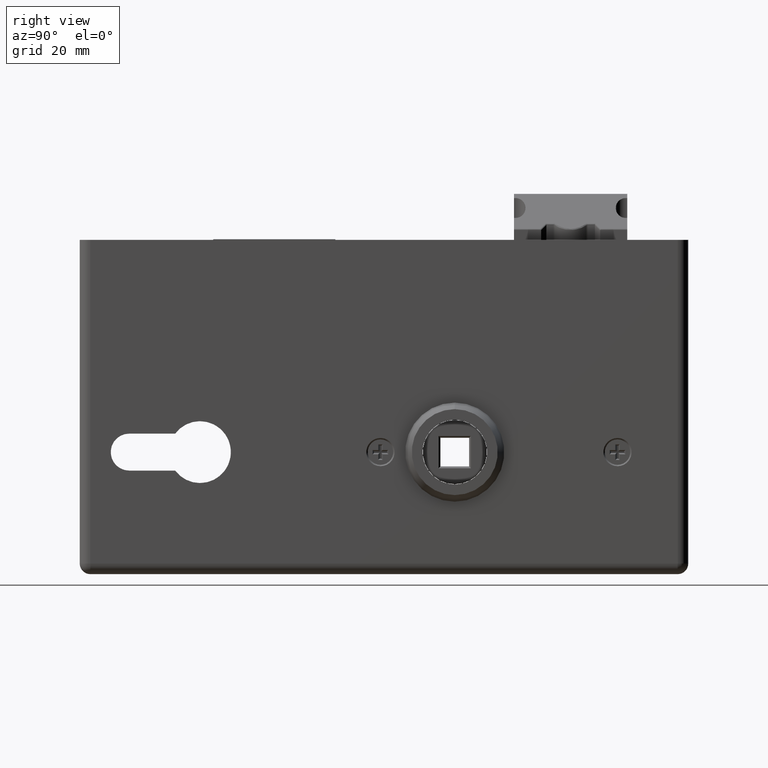
[diagram: clean part render]
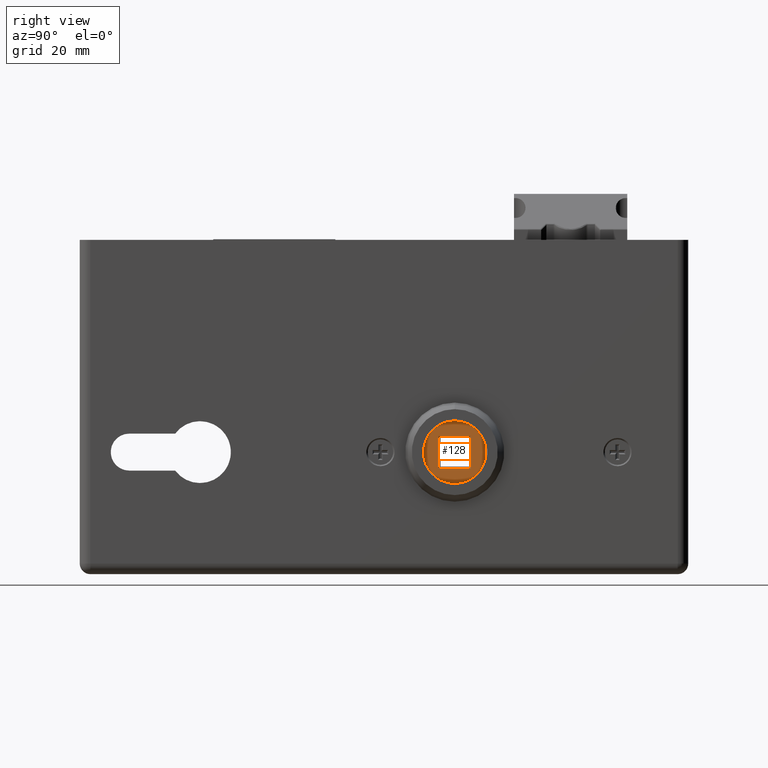
[diagram: same view with one face highlighted and labeled with its STEP entity id]
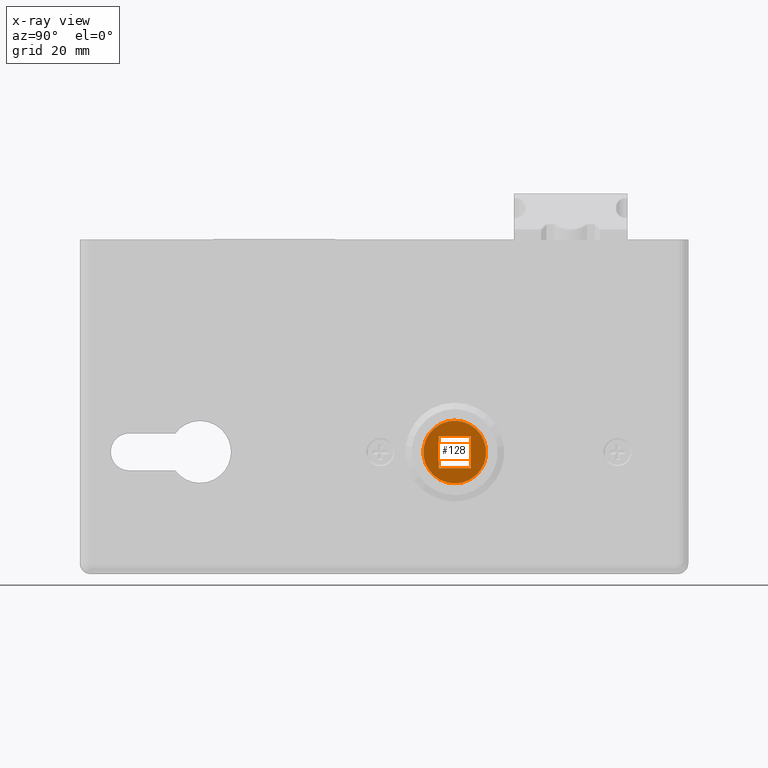
[diagram: x-ray of the same camera — body ghosted, the highlighted face saturated]
A machine part, right view. The second image highlights one B-rep face of the part: STEP entity #128.
The next image is the same camera in x-ray: the body ghosted, the highlighted face saturated — about 0% of this face is hidden behind the body in this view.
In plain terms, the highlighted planar face has unit normal (1, 0, 0).
Its self-contained STEP definition (entity closure, byte-faithful):
#81 = EDGE_CURVE ( 'NONE', #21067, #16696, #7789, .T. ) ;
#128 = ADVANCED_FACE ( 'NONE', ( #13220, #18938 ), #12899, .T. ) ;
#437 = CARTESIAN_POINT ( 'NONE',  ( 7.000000000000000000, 15.45000000000000462, -52.44999999999999574 ) ) ;
#1937 = CARTESIAN_POINT ( 'NONE',  ( 7.000000000000000000, 15.45000000000000462, -56.99999999999999289 ) ) ;
#2397 = LINE ( 'NONE', #1937, #8427 ) ;
#2520 = EDGE_LOOP ( 'NONE', ( #12954, #18856 ) ) ;
#3073 = LINE ( 'NONE', #3213, #6390 ) ;
#3109 = CARTESIAN_POINT ( 'NONE',  ( 7.000000000000000000, 24.55000000000000071, -52.44999999999999574 ) ) ;
#3213 = CARTESIAN_POINT ( 'NONE',  ( 7.000000000000000000, 24.55000000000000071, -56.99999999999999289 ) ) ;
#3227 = LINE ( 'NONE', #5494, #23775 ) ;
#3679 = EDGE_CURVE ( 'NONE', #21294, #11406, #6144, .T. ) ;
#4937 = DIRECTION ( 'NONE',  ( 1.000000000000000000, 0.000000000000000000, 0.000000000000000000 ) ) ;
#5122 = AXIS2_PLACEMENT_3D ( 'NONE', #21298, #11263, #13214 ) ;
#5302 = CARTESIAN_POINT ( 'NONE',  ( 7.000000000000000000, 20.00000000000000355, -56.99999999999999289 ) ) ;
#5494 = CARTESIAN_POINT ( 'NONE',  ( 7.000000000000000000, 20.00000000000000355, -52.44999999999999574 ) ) ;
#6144 = CIRCLE ( 'NONE', #5122, 8.849999999999996092 ) ;
#6176 = ORIENTED_EDGE ( 'NONE', *, *, #22369, .T. ) ;
#6330 = CARTESIAN_POINT ( 'NONE',  ( 7.000000000000000000, 20.00000000000000355, -65.84999999999999432 ) ) ;
#6390 = VECTOR ( 'NONE', #10721, 1000.000000000000000 ) ;
#7789 = LINE ( 'NONE', #20052, #16250 ) ;
#8058 = EDGE_LOOP ( 'NONE', ( #6176, #22559, #17899, #16554 ) ) ;
#8402 = AXIS2_PLACEMENT_3D ( 'NONE', #5302, #18809, #20433 ) ;
#8427 = VECTOR ( 'NONE', #23274, 1000.000000000000000 ) ;
#9993 = EDGE_CURVE ( 'NONE', #11244, #13795, #3227, .T. ) ;
#10721 = DIRECTION ( 'NONE',  ( 0.000000000000000000, 0.000000000000000000, -1.000000000000000000 ) ) ;
#11244 = VERTEX_POINT ( 'NONE', #437 ) ;
#11263 = DIRECTION ( 'NONE',  ( 1.000000000000000000, 0.000000000000000000, 0.000000000000000000 ) ) ;
#11406 = VERTEX_POINT ( 'NONE', #6330 ) ;
#12473 = DIRECTION ( 'NONE',  ( 0.000000000000000000, -1.000000000000000000, 0.000000000000000000 ) ) ;
#12899 = PLANE ( 'NONE',  #15592 ) ;
#12954 = ORIENTED_EDGE ( 'NONE', *, *, #14751, .T. ) ;
#13214 = DIRECTION ( 'NONE',  ( 0.000000000000000000, 0.000000000000000000, -1.000000000000000000 ) ) ;
#13220 = FACE_OUTER_BOUND ( 'NONE', #2520, .T. ) ;
#13795 = VERTEX_POINT ( 'NONE', #3109 ) ;
#14544 = CIRCLE ( 'NONE', #8402, 8.849999999999996092 ) ;
#14745 = DIRECTION ( 'NONE',  ( 0.000000000000000000, 0.000000000000000000, -1.000000000000000000 ) ) ;
#14751 = EDGE_CURVE ( 'NONE', #11406, #21294, #14544, .T. ) ;
#14934 = CARTESIAN_POINT ( 'NONE',  ( 7.000000000000000000, 24.55000000000000071, -61.54999999999999716 ) ) ;
#15592 = AXIS2_PLACEMENT_3D ( 'NONE', #22507, #4937, #14745 ) ;
#16250 = VECTOR ( 'NONE', #12473, 1000.000000000000000 ) ;
#16554 = ORIENTED_EDGE ( 'NONE', *, *, #9993, .T. ) ;
#16696 = VERTEX_POINT ( 'NONE', #21874 ) ;
#17432 = EDGE_CURVE ( 'NONE', #16696, #11244, #2397, .T. ) ;
#17899 = ORIENTED_EDGE ( 'NONE', *, *, #17432, .T. ) ;
#18361 = CARTESIAN_POINT ( 'NONE',  ( 7.000000000000000000, 20.00000000000000355, -48.14999999999999858 ) ) ;
#18809 = DIRECTION ( 'NONE',  ( 1.000000000000000000, 0.000000000000000000, 0.000000000000000000 ) ) ;
#18856 = ORIENTED_EDGE ( 'NONE', *, *, #3679, .T. ) ;
#18938 = FACE_BOUND ( 'NONE', #8058, .T. ) ;
#20052 = CARTESIAN_POINT ( 'NONE',  ( 7.000000000000000000, 20.00000000000000355, -61.54999999999999716 ) ) ;
#20433 = DIRECTION ( 'NONE',  ( 0.000000000000000000, 0.000000000000000000, -1.000000000000000000 ) ) ;
#21067 = VERTEX_POINT ( 'NONE', #14934 ) ;
#21118 = DIRECTION ( 'NONE',  ( 0.000000000000000000, 1.000000000000000000, 0.000000000000000000 ) ) ;
#21294 = VERTEX_POINT ( 'NONE', #18361 ) ;
#21298 = CARTESIAN_POINT ( 'NONE',  ( 7.000000000000000000, 20.00000000000000355, -56.99999999999999289 ) ) ;
#21874 = CARTESIAN_POINT ( 'NONE',  ( 7.000000000000000000, 15.45000000000000462, -61.54999999999999716 ) ) ;
#22369 = EDGE_CURVE ( 'NONE', #13795, #21067, #3073, .T. ) ;
#22507 = CARTESIAN_POINT ( 'NONE',  ( 7.000000000000000000, 20.00000000000000355, -56.99999999999999289 ) ) ;
#22559 = ORIENTED_EDGE ( 'NONE', *, *, #81, .T. ) ;
#23274 = DIRECTION ( 'NONE',  ( 0.000000000000000000, -0.000000000000000000, 1.000000000000000000 ) ) ;
#23775 = VECTOR ( 'NONE', #21118, 1000.000000000000000 ) ;